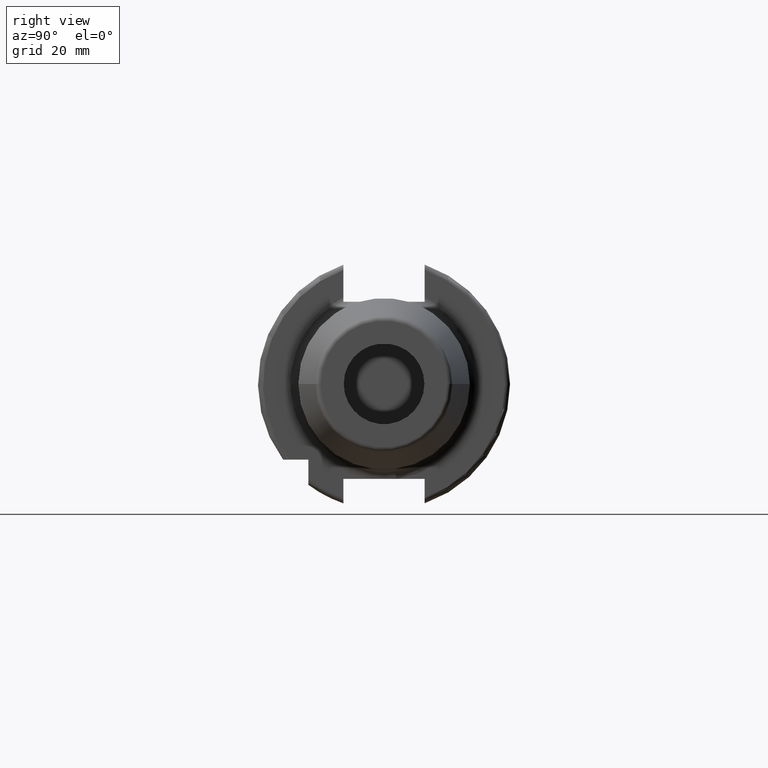
[diagram: clean part render]
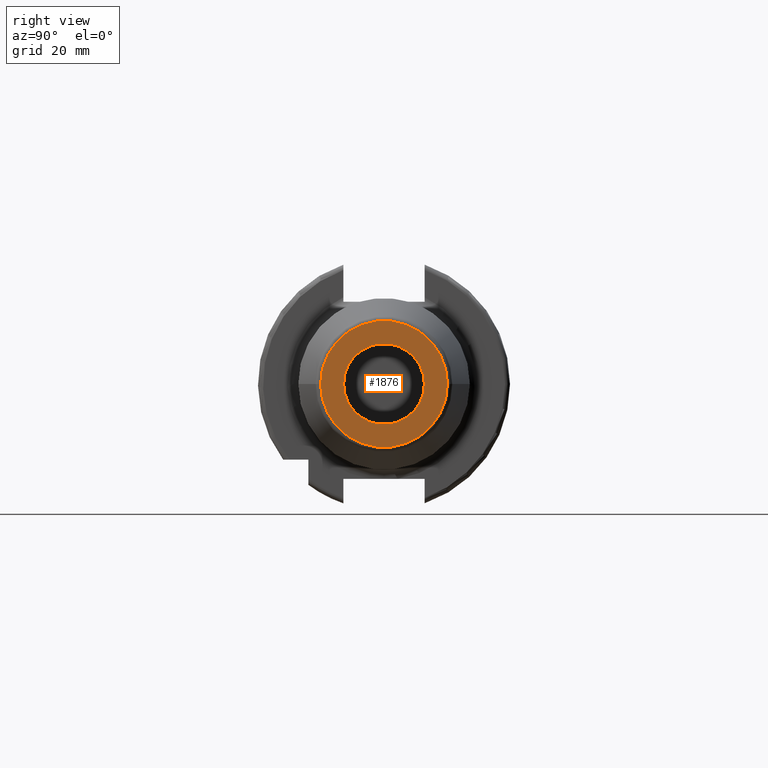
[diagram: same view with one face highlighted and labeled with its STEP entity id]
A machine part, right view. The second image highlights one B-rep face of the part: STEP entity #1876.
In plain terms, the highlighted planar face has unit normal (1, 0, 0).
Its self-contained STEP definition (entity closure, byte-faithful):
#307=CARTESIAN_POINT('',(8.E1,0.E0,0.E0));
#308=DIRECTION('',(1.E0,0.E0,0.E0));
#309=DIRECTION('',(0.E0,1.E0,0.E0));
#310=AXIS2_PLACEMENT_3D('',#307,#308,#309);
#312=CARTESIAN_POINT('',(8.E1,0.E0,0.E0));
#313=DIRECTION('',(-1.E0,0.E0,0.E0));
#314=DIRECTION('',(0.E0,1.E0,0.E0));
#315=AXIS2_PLACEMENT_3D('',#312,#313,#314);
#317=CARTESIAN_POINT('',(8.E1,0.E0,0.E0));
#318=DIRECTION('',(-1.E0,0.E0,0.E0));
#319=DIRECTION('',(0.E0,1.E0,0.E0));
#320=AXIS2_PLACEMENT_3D('',#317,#318,#319);
#322=CARTESIAN_POINT('',(8.E1,0.E0,0.E0));
#323=DIRECTION('',(-1.E0,0.E0,0.E0));
#324=DIRECTION('',(0.E0,-1.E0,0.E0));
#325=AXIS2_PLACEMENT_3D('',#322,#323,#324);
#1432=CARTESIAN_POINT('',(8.E1,8.E0,0.E0));
#1434=VERTEX_POINT('',#1432);
#1436=CARTESIAN_POINT('',(8.E1,-8.E0,0.E0));
#1438=VERTEX_POINT('',#1436);
#1443=CARTESIAN_POINT('',(8.E1,1.257560950834E1,0.E0));
#1444=CARTESIAN_POINT('',(8.E1,-1.257560950834E1,0.E0));
#1445=VERTEX_POINT('',#1443);
#1446=VERTEX_POINT('',#1444);
#1861=CARTESIAN_POINT('',(8.E1,0.E0,0.E0));
#1862=DIRECTION('',(1.E0,0.E0,0.E0));
#1863=DIRECTION('',(0.E0,-1.E0,0.E0));
#1864=AXIS2_PLACEMENT_3D('',#1861,#1862,#1863);
#1865=PLANE('',#1864);
#1866=ORIENTED_EDGE('',*,*,#1843,.T.);
#1867=ORIENTED_EDGE('',*,*,#1828,.T.);
#1868=EDGE_LOOP('',(#1866,#1867));
#1869=FACE_OUTER_BOUND('',#1868,.F.);
#1871=ORIENTED_EDGE('',*,*,#1870,.T.);
#1873=ORIENTED_EDGE('',*,*,#1872,.F.);
#1874=EDGE_LOOP('',(#1871,#1873));
#1875=FACE_BOUND('',#1874,.F.);
#1876=ADVANCED_FACE('',(#1869,#1875),#1865,.T.);
#311=CIRCLE('',#310,8.E0);
#316=CIRCLE('',#315,8.E0);
#321=CIRCLE('',#320,1.257560950834E1);
#326=CIRCLE('',#325,1.257560950834E1);
#1828=EDGE_CURVE('',#1446,#1445,#326,.T.);
#1843=EDGE_CURVE('',#1445,#1446,#321,.T.);
#1870=EDGE_CURVE('',#1434,#1438,#311,.T.);
#1872=EDGE_CURVE('',#1434,#1438,#316,.T.);